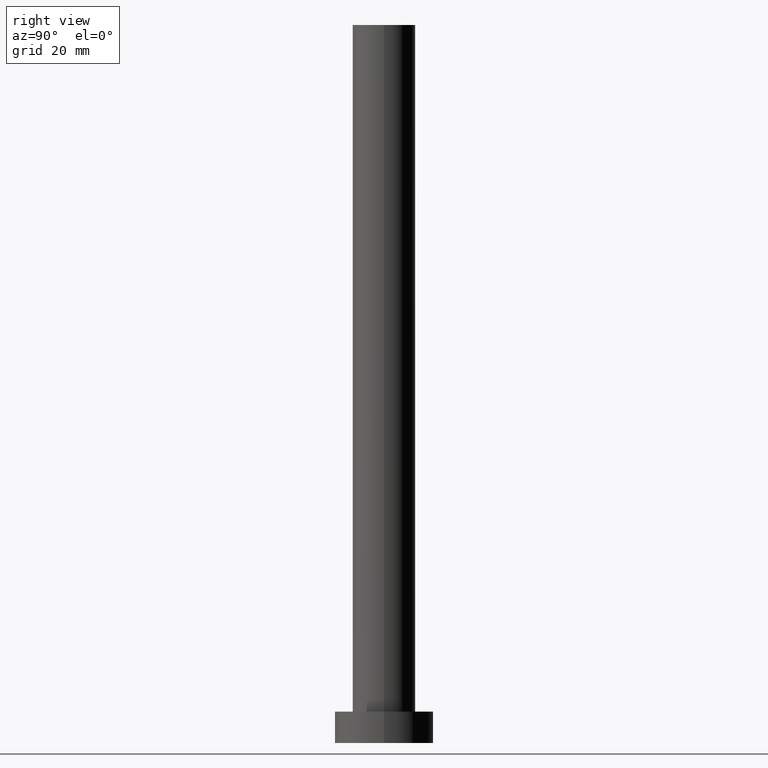
[diagram: clean part render]
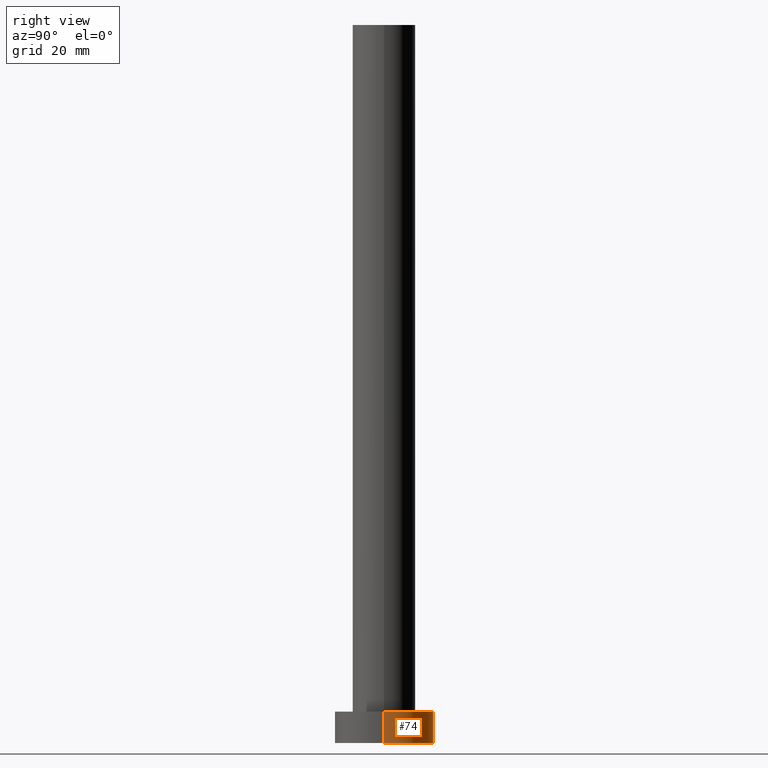
[diagram: same view with one face highlighted and labeled with its STEP entity id]
A machine part, right view. The second image highlights one B-rep face of the part: STEP entity #74.
In plain terms, the highlighted cylindrical surface (partial cylindrical patch) has radius 11 mm, axis along (-0, -0, -1).
Its self-contained STEP definition (entity closure, byte-faithful):
#1 = EDGE_LOOP ( 'NONE', ( #198, #22, #152, #236 ) ) ;
#3 = LINE ( 'NONE', #47, #178 ) ;
#22 = ORIENTED_EDGE ( 'NONE', *, *, #109, .T. ) ;
#23 = VERTEX_POINT ( 'NONE', #98 ) ;
#25 = CARTESIAN_POINT ( 'NONE',  ( 11.00000000000000000, 1.347111479062088405E-15, 7.000000000000000000 ) ) ;
#39 = AXIS2_PLACEMENT_3D ( 'NONE', #225, #206, #179 ) ;
#47 = CARTESIAN_POINT ( 'NONE',  ( 11.00000000000000000, 1.347111479062088405E-15, 7.000000000000000000 ) ) ;
#62 = CARTESIAN_POINT ( 'NONE',  ( 0.000000000000000000, 0.000000000000000000, 7.000000000000000000 ) ) ;
#74 = ADVANCED_FACE ( 'NONE', ( #157 ), #121, .T. ) ;
#78 = AXIS2_PLACEMENT_3D ( 'NONE', #101, #242, #124 ) ;
#81 = VERTEX_POINT ( 'NONE', #25 ) ;
#98 = CARTESIAN_POINT ( 'NONE',  ( 11.00000000000000000, 1.347111479062088405E-15, 0.000000000000000000 ) ) ;
#101 = CARTESIAN_POINT ( 'NONE',  ( 0.000000000000000000, 0.000000000000000000, 0.000000000000000000 ) ) ;
#109 = EDGE_CURVE ( 'NONE', #81, #23, #3, .T. ) ;
#121 = CYLINDRICAL_SURFACE ( 'NONE', #209, 11.00000000000000000 ) ;
#122 = DIRECTION ( 'NONE',  ( -1.000000000000000000, 0.000000000000000000, 0.000000000000000000 ) ) ;
#124 = DIRECTION ( 'NONE',  ( 1.000000000000000000, 0.000000000000000000, 0.000000000000000000 ) ) ;
#132 = VECTOR ( 'NONE', #241, 1000.000000000000000 ) ;
#141 = DIRECTION ( 'NONE',  ( -0.000000000000000000, -0.000000000000000000, -1.000000000000000000 ) ) ;
#142 = LINE ( 'NONE', #243, #132 ) ;
#150 = EDGE_CURVE ( 'NONE', #201, #200, #142, .T. ) ;
#152 = ORIENTED_EDGE ( 'NONE', *, *, #193, .T. ) ;
#157 = FACE_OUTER_BOUND ( 'NONE', #1, .T. ) ;
#178 = VECTOR ( 'NONE', #141, 1000.000000000000000 ) ;
#179 = DIRECTION ( 'NONE',  ( 1.000000000000000000, 0.000000000000000000, 0.000000000000000000 ) ) ;
#186 = CARTESIAN_POINT ( 'NONE',  ( -11.00000000000000000, 0.000000000000000000, 7.000000000000000000 ) ) ;
#190 = CIRCLE ( 'NONE', #78, 11.00000000000000000 ) ;
#193 = EDGE_CURVE ( 'NONE', #23, #200, #190, .T. ) ;
#198 = ORIENTED_EDGE ( 'NONE', *, *, #246, .F. ) ;
#200 = VERTEX_POINT ( 'NONE', #223 ) ;
#201 = VERTEX_POINT ( 'NONE', #186 ) ;
#206 = DIRECTION ( 'NONE',  ( 0.000000000000000000, 0.000000000000000000, 1.000000000000000000 ) ) ;
#209 = AXIS2_PLACEMENT_3D ( 'NONE', #62, #239, #122 ) ;
#223 = CARTESIAN_POINT ( 'NONE',  ( -11.00000000000000000, 0.000000000000000000, 0.000000000000000000 ) ) ;
#225 = CARTESIAN_POINT ( 'NONE',  ( 0.000000000000000000, 0.000000000000000000, 7.000000000000000000 ) ) ;
#236 = ORIENTED_EDGE ( 'NONE', *, *, #150, .F. ) ;
#239 = DIRECTION ( 'NONE',  ( -0.000000000000000000, -0.000000000000000000, -1.000000000000000000 ) ) ;
#240 = CIRCLE ( 'NONE', #39, 11.00000000000000000 ) ;
#241 = DIRECTION ( 'NONE',  ( -0.000000000000000000, -0.000000000000000000, -1.000000000000000000 ) ) ;
#242 = DIRECTION ( 'NONE',  ( 0.000000000000000000, 0.000000000000000000, 1.000000000000000000 ) ) ;
#243 = CARTESIAN_POINT ( 'NONE',  ( -11.00000000000000000, 0.000000000000000000, 7.000000000000000000 ) ) ;
#246 = EDGE_CURVE ( 'NONE', #81, #201, #240, .T. ) ;